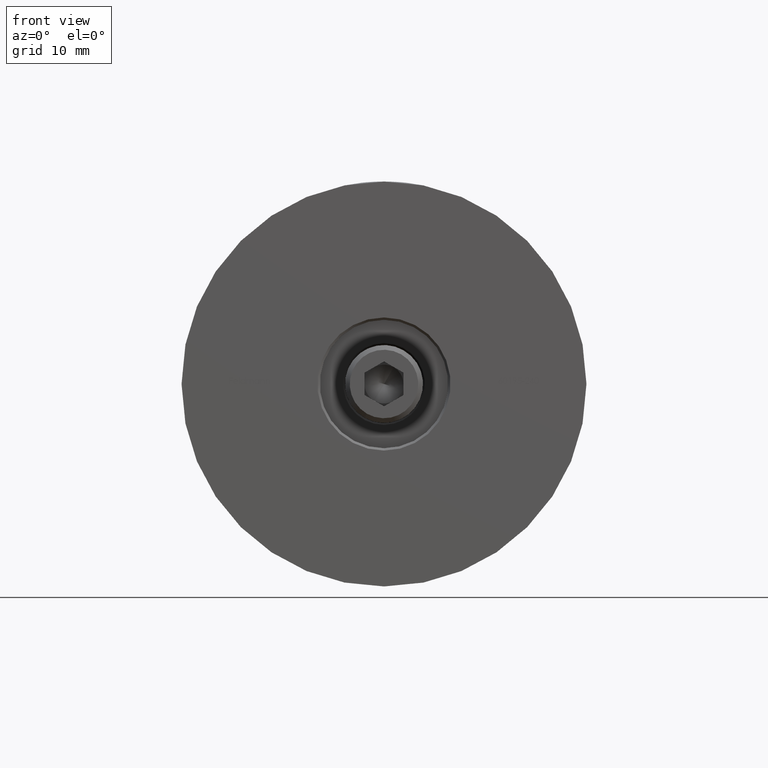
[diagram: clean part render]
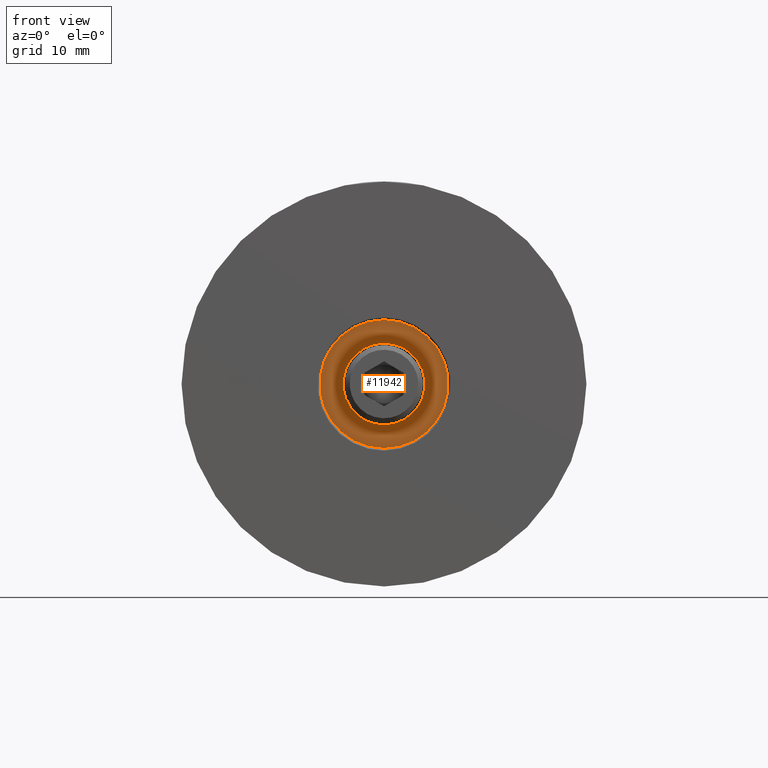
[diagram: same view with one face highlighted and labeled with its STEP entity id]
A machine part, front view. The second image highlights one B-rep face of the part: STEP entity #11942.
In plain terms, the highlighted planar face has unit normal (0, -1, 0).
Its self-contained STEP definition (entity closure, byte-faithful):
#64 = VERTEX_POINT ( 'NONE', #11261 ) ;
#191 = EDGE_CURVE ( 'NONE', #64, #8200, #15655, .T. ) ;
#510 = DIRECTION ( 'NONE',  ( 0.000000000000000000, 0.000000000000000000, -1.000000000000000000 ) ) ;
#831 = CARTESIAN_POINT ( 'NONE',  ( 8.249999999999998224, -1.500000000000002887, 0.000000000000000000 ) ) ;
#844 = AXIS2_PLACEMENT_3D ( 'NONE', #1328, #10276, #10225 ) ;
#1305 = CIRCLE ( 'NONE', #4630, 8.249999999999998224 ) ;
#1328 = CARTESIAN_POINT ( 'NONE',  ( 0.000000000000000000, -1.500000000000002665, 0.000000000000000000 ) ) ;
#1356 = CIRCLE ( 'NONE', #14159, 5.250000000000000000 ) ;
#1401 = EDGE_CURVE ( 'NONE', #10298, #13503, #3976, .T. ) ;
#1969 = AXIS2_PLACEMENT_3D ( 'NONE', #8790, #16622, #16498 ) ;
#2027 = ORIENTED_EDGE ( 'NONE', *, *, #191, .T. ) ;
#2884 = CARTESIAN_POINT ( 'NONE',  ( 0.000000000000000000, -1.500000000000002665, 0.000000000000000000 ) ) ;
#3976 = CIRCLE ( 'NONE', #1969, 5.250000000000000000 ) ;
#4556 = CARTESIAN_POINT ( 'NONE',  ( 6.429395695523604153E-16, -1.500000000000003109, 5.250000000000000000 ) ) ;
#4630 = AXIS2_PLACEMENT_3D ( 'NONE', #2884, #11818, #510 ) ;
#4669 = DIRECTION ( 'NONE',  ( 0.000000000000000000, -1.000000000000000000, -0.000000000000000000 ) ) ;
#5587 = CARTESIAN_POINT ( 'NONE',  ( 0.000000000000000000, -1.500000000000003109, -5.250000000000000000 ) ) ;
#5993 = DIRECTION ( 'NONE',  ( 0.000000000000000000, 0.000000000000000000, -1.000000000000000000 ) ) ;
#6135 = AXIS2_PLACEMENT_3D ( 'NONE', #831, #4669, #5993 ) ;
#6498 = EDGE_CURVE ( 'NONE', #13503, #10298, #1356, .T. ) ;
#6542 = FACE_BOUND ( 'NONE', #12187, .T. ) ;
#7319 = ORIENTED_EDGE ( 'NONE', *, *, #9010, .T. ) ;
#8032 = EDGE_LOOP ( 'NONE', ( #7319, #2027 ) ) ;
#8200 = VERTEX_POINT ( 'NONE', #12436 ) ;
#8790 = CARTESIAN_POINT ( 'NONE',  ( 0.000000000000000000, -1.500000000000003109, 0.000000000000000000 ) ) ;
#9010 = EDGE_CURVE ( 'NONE', #8200, #64, #1305, .T. ) ;
#9027 = CARTESIAN_POINT ( 'NONE',  ( 0.000000000000000000, -1.500000000000003109, 0.000000000000000000 ) ) ;
#10225 = DIRECTION ( 'NONE',  ( 0.000000000000000000, 0.000000000000000000, -1.000000000000000000 ) ) ;
#10276 = DIRECTION ( 'NONE',  ( -0.000000000000000000, -1.000000000000000000, -0.000000000000000000 ) ) ;
#10298 = VERTEX_POINT ( 'NONE', #4556 ) ;
#10613 = ORIENTED_EDGE ( 'NONE', *, *, #1401, .F. ) ;
#11020 = PLANE ( 'NONE',  #6135 ) ;
#11261 = CARTESIAN_POINT ( 'NONE',  ( 1.010333609296566353E-15, -1.500000000000002665, 8.249999999999998224 ) ) ;
#11818 = DIRECTION ( 'NONE',  ( -0.000000000000000000, -1.000000000000000000, -0.000000000000000000 ) ) ;
#11942 = ADVANCED_FACE ( 'NONE', ( #13319, #6542 ), #11020, .T. ) ;
#12187 = EDGE_LOOP ( 'NONE', ( #14936, #10613 ) ) ;
#12436 = CARTESIAN_POINT ( 'NONE',  ( 0.000000000000000000, -1.500000000000002665, -8.249999999999998224 ) ) ;
#12922 = DIRECTION ( 'NONE',  ( 0.000000000000000000, 0.000000000000000000, -1.000000000000000000 ) ) ;
#13319 = FACE_OUTER_BOUND ( 'NONE', #8032, .T. ) ;
#13503 = VERTEX_POINT ( 'NONE', #5587 ) ;
#14128 = DIRECTION ( 'NONE',  ( -0.000000000000000000, -1.000000000000000000, -0.000000000000000000 ) ) ;
#14159 = AXIS2_PLACEMENT_3D ( 'NONE', #9027, #14128, #12922 ) ;
#14936 = ORIENTED_EDGE ( 'NONE', *, *, #6498, .F. ) ;
#15655 = CIRCLE ( 'NONE', #844, 8.249999999999998224 ) ;
#16498 = DIRECTION ( 'NONE',  ( 0.000000000000000000, 0.000000000000000000, -1.000000000000000000 ) ) ;
#16622 = DIRECTION ( 'NONE',  ( -0.000000000000000000, -1.000000000000000000, -0.000000000000000000 ) ) ;